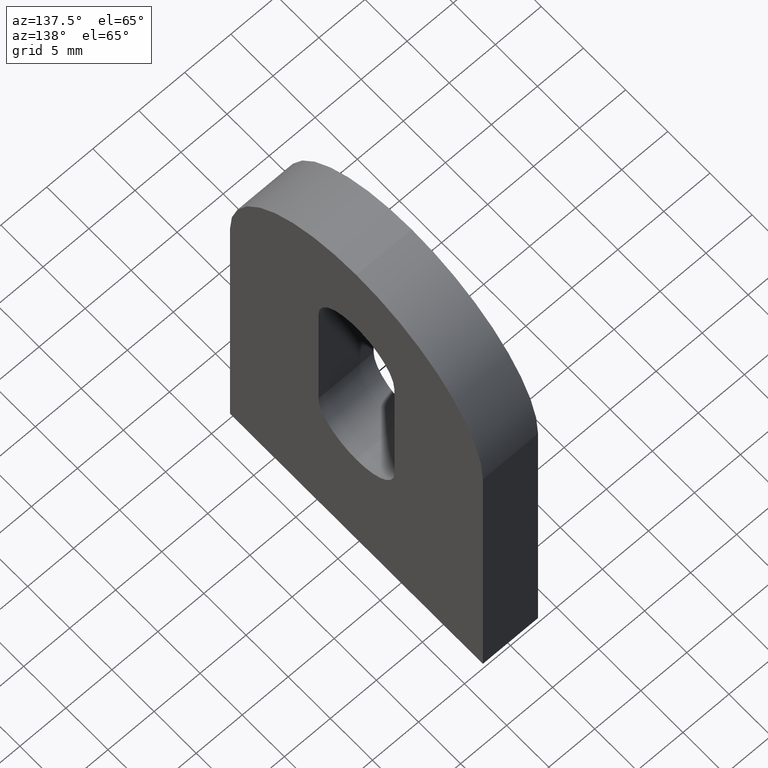
[diagram: clean part render]
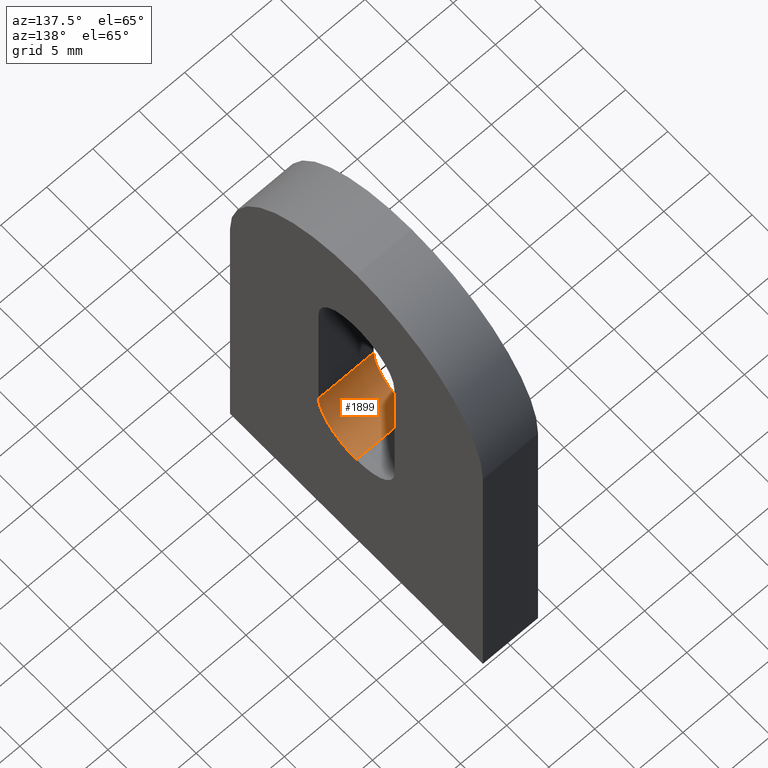
[diagram: same view with one face highlighted and labeled with its STEP entity id]
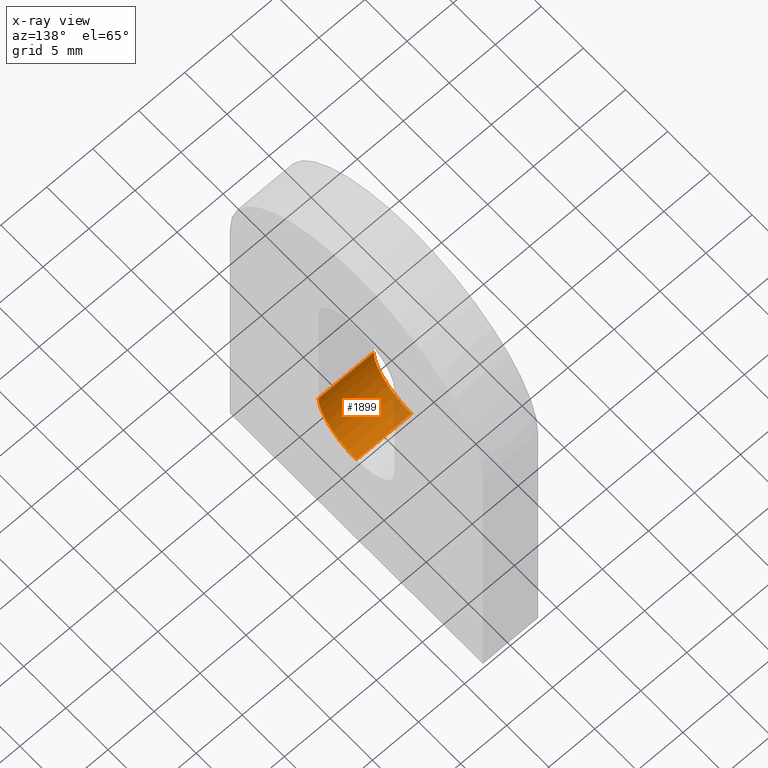
[diagram: x-ray of the same camera — body ghosted, the highlighted face saturated]
A machine part, auxiliary view. The second image highlights one B-rep face of the part: STEP entity #1899.
The next image is the same camera in x-ray: the body ghosted, the highlighted face saturated — about 6% of this face is hidden behind the body in this view.
In plain terms, the highlighted cylindrical surface (partial cylindrical patch) has radius 4.5 mm, axis along (1, -0, -0).
Its self-contained STEP definition (entity closure, byte-faithful):
#24 = FACE_OUTER_BOUND ( 'NONE', #2099, .T. ) ;
#257 = CARTESIAN_POINT ( 'NONE',  ( -3.000000000000000000, 7.966394000823675000E-016, 14.99999999999999600 ) ) ;
#279 = EDGE_CURVE ( 'NONE', #7317, #7735, #4635, .T. ) ;
#329 = ORIENTED_EDGE ( 'NONE', *, *, #8346, .T. ) ;
#766 = DIRECTION ( 'NONE',  ( 1.000000000000000000, 0.0000000000000000000, 0.0000000000000000000 ) ) ;
#950 = DIRECTION ( 'NONE',  ( 1.000000000000000000, -0.0000000000000000000, -0.0000000000000000000 ) ) ;
#1423 = CYLINDRICAL_SURFACE ( 'NONE', #9884, 4.500000000000000900 ) ;
#1798 = CARTESIAN_POINT ( 'NONE',  ( -3.000000000000000000, 7.966394000823675000E-016, 19.49999999999999600 ) ) ;
#1841 = VERTEX_POINT ( 'NONE', #8670 ) ;
#1899 = ADVANCED_FACE ( 'NONE', ( #24 ), #1423, .F. ) ;
#2099 = EDGE_LOOP ( 'NONE', ( #9506, #7654, #2116, #329 ) ) ;
#2116 = ORIENTED_EDGE ( 'NONE', *, *, #3323, .T. ) ;
#2236 = CARTESIAN_POINT ( 'NONE',  ( 3.000000000000000000, 7.966394000823675000E-016, 19.49999999999999600 ) ) ;
#2587 = DIRECTION ( 'NONE',  ( 1.000000000000000000, -0.0000000000000000000, -0.0000000000000000000 ) ) ;
#3323 = EDGE_CURVE ( 'NONE', #7317, #10118, #4489, .T. ) ;
#3423 = EDGE_CURVE ( 'NONE', #7735, #1841, #10280, .T. ) ;
#3481 = DIRECTION ( 'NONE',  ( 1.000000000000000000, 0.0000000000000000000, 0.0000000000000000000 ) ) ;
#3976 = DIRECTION ( 'NONE',  ( 0.0000000000000000000, 0.0000000000000000000, -1.000000000000000000 ) ) ;
#4341 = CARTESIAN_POINT ( 'NONE',  ( -3.000000000000000000, -4.500000000000000000, 19.49999999999999600 ) ) ;
#4489 = LINE ( 'NONE', #4341, #8592 ) ;
#4572 = DIRECTION ( 'NONE',  ( 0.0000000000000000000, 0.0000000000000000000, -1.000000000000000000 ) ) ;
#4635 = CIRCLE ( 'NONE', #6148, 4.500000000000000900 ) ;
#6045 = CIRCLE ( 'NONE', #8185, 4.500000000000000900 ) ;
#6148 = AXIS2_PLACEMENT_3D ( 'NONE', #1798, #3481, #7420 ) ;
#6189 = DIRECTION ( 'NONE',  ( 1.000000000000000000, -0.0000000000000000000, -0.0000000000000000000 ) ) ;
#7317 = VERTEX_POINT ( 'NONE', #8861 ) ;
#7420 = DIRECTION ( 'NONE',  ( 0.0000000000000000000, 0.0000000000000000000, -1.000000000000000000 ) ) ;
#7654 = ORIENTED_EDGE ( 'NONE', *, *, #279, .F. ) ;
#7735 = VERTEX_POINT ( 'NONE', #7788 ) ;
#7788 = CARTESIAN_POINT ( 'NONE',  ( -3.000000000000000000, 7.966394000823675000E-016, 14.99999999999999600 ) ) ;
#8064 = CARTESIAN_POINT ( 'NONE',  ( 3.000000000000000000, -4.500000000000000000, 19.49999999999999600 ) ) ;
#8185 = AXIS2_PLACEMENT_3D ( 'NONE', #2236, #766, #3976 ) ;
#8346 = EDGE_CURVE ( 'NONE', #10118, #1841, #6045, .T. ) ;
#8592 = VECTOR ( 'NONE', #2587, 1000.000000000000000 ) ;
#8617 = CARTESIAN_POINT ( 'NONE',  ( -3.000000000000000000, 7.966394000823675000E-016, 19.49999999999999600 ) ) ;
#8670 = CARTESIAN_POINT ( 'NONE',  ( 3.000000000000000000, 7.966394000823675000E-016, 14.99999999999999600 ) ) ;
#8861 = CARTESIAN_POINT ( 'NONE',  ( -3.000000000000000000, -4.499999999999998200, 19.49999999999999600 ) ) ;
#9506 = ORIENTED_EDGE ( 'NONE', *, *, #3423, .F. ) ;
#9884 = AXIS2_PLACEMENT_3D ( 'NONE', #8617, #6189, #4572 ) ;
#10118 = VERTEX_POINT ( 'NONE', #8064 ) ;
#10280 = LINE ( 'NONE', #257, #10531 ) ;
#10531 = VECTOR ( 'NONE', #950, 1000.000000000000000 ) ;